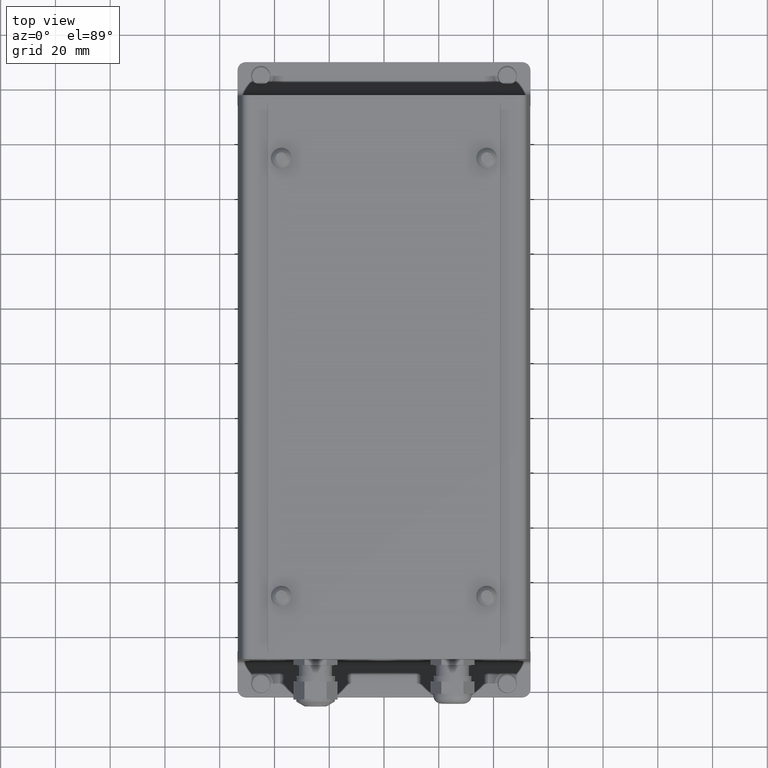
[diagram: clean part render]
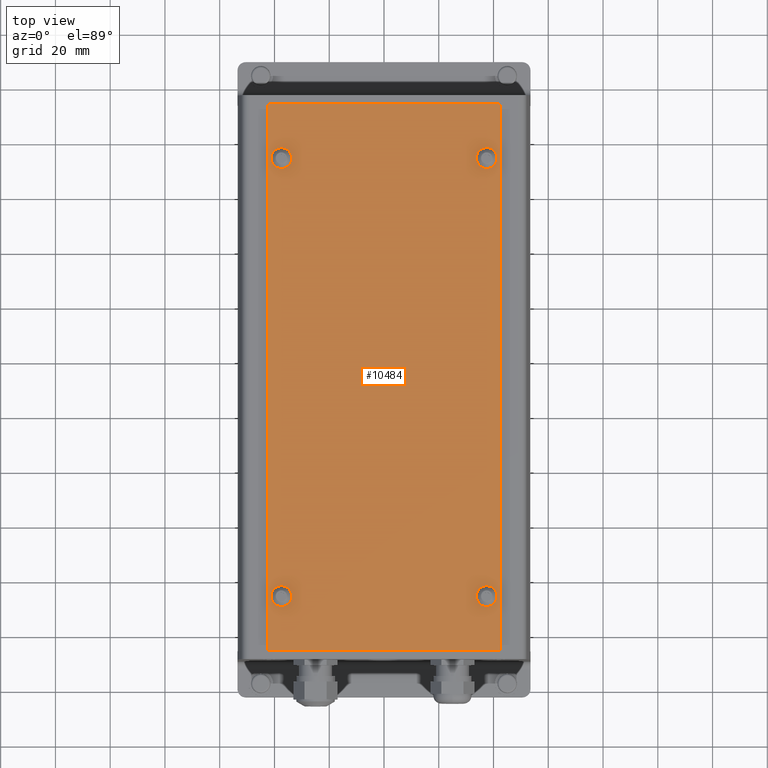
[diagram: same view with one face highlighted and labeled with its STEP entity id]
A machine part, top view. The second image highlights one B-rep face of the part: STEP entity #10484.
In plain terms, the highlighted planar face has unit normal (0, 0, 1).
Its self-contained STEP definition (entity closure, byte-faithful):
#10078=CARTESIAN_POINT('',(-37.599999999999987,-79.999999999999972,0.750000000000000));
#10079=VERTEX_POINT('',#10078);
#10088=CARTESIAN_POINT('',(-42.399999999999984,-79.999999999999972,0.750000000000000));
#10089=VERTEX_POINT('',#10088);
#10090=CARTESIAN_POINT('',(-39.999999999999986,-79.999999999999972,0.750000000000000));
#10091=DIRECTION('',(0.0,0.0,-1.0));
#10092=DIRECTION('',(1.0,0.0,0.0));
#10093=AXIS2_PLACEMENT_3D('',#10090,#10091,#10092);
#10094=CIRCLE('',#10093,2.400000000000000);
#10095=EDGE_CURVE('',#10089,#10079,#10094,.T.);
#10120=CARTESIAN_POINT('',(37.400000000000013,-79.999999999999972,0.750000000000000));
#10121=VERTEX_POINT('',#10120);
#10130=CARTESIAN_POINT('',(32.600000000000016,-79.999999999999972,0.750000000000000));
#10131=VERTEX_POINT('',#10130);
#10132=CARTESIAN_POINT('',(35.000000000000014,-79.999999999999972,0.750000000000000));
#10133=DIRECTION('',(0.0,0.0,-1.0));
#10134=DIRECTION('',(1.0,0.0,0.0));
#10135=AXIS2_PLACEMENT_3D('',#10132,#10133,#10134);
#10136=CIRCLE('',#10135,2.400000000000000);
#10137=EDGE_CURVE('',#10131,#10121,#10136,.T.);
#10162=CARTESIAN_POINT('',(-37.599999999999952,80.000000000000028,0.750000000000000));
#10163=VERTEX_POINT('',#10162);
#10172=CARTESIAN_POINT('',(-42.399999999999949,80.000000000000028,0.750000000000000));
#10173=VERTEX_POINT('',#10172);
#10174=CARTESIAN_POINT('',(-39.999999999999950,80.000000000000028,0.750000000000000));
#10175=DIRECTION('',(0.0,0.0,-1.0));
#10176=DIRECTION('',(1.0,0.0,0.0));
#10177=AXIS2_PLACEMENT_3D('',#10174,#10175,#10176);
#10178=CIRCLE('',#10177,2.400000000000000);
#10179=EDGE_CURVE('',#10173,#10163,#10178,.T.);
#10204=CARTESIAN_POINT('',(37.400000000000041,80.000000000000028,0.750000000000000));
#10205=VERTEX_POINT('',#10204);
#10214=CARTESIAN_POINT('',(32.600000000000044,80.000000000000028,0.750000000000000));
#10215=VERTEX_POINT('',#10214);
#10216=CARTESIAN_POINT('',(35.000000000000043,80.000000000000028,0.750000000000000));
#10217=DIRECTION('',(0.0,0.0,-1.0));
#10218=DIRECTION('',(1.0,0.0,0.0));
#10219=AXIS2_PLACEMENT_3D('',#10216,#10217,#10218);
#10220=CIRCLE('',#10219,2.400000000000000);
#10221=EDGE_CURVE('',#10215,#10205,#10220,.T.);
#10255=CARTESIAN_POINT('',(35.000000000000043,80.000000000000028,0.750000000000000));
#10256=DIRECTION('',(0.0,0.0,-1.0));
#10257=DIRECTION('',(1.0,0.0,0.0));
#10258=AXIS2_PLACEMENT_3D('',#10255,#10256,#10257);
#10259=CIRCLE('',#10258,2.400000000000000);
#10260=EDGE_CURVE('',#10205,#10215,#10259,.T.);
#10279=CARTESIAN_POINT('',(-39.999999999999950,80.000000000000028,0.750000000000000));
#10280=DIRECTION('',(0.0,0.0,-1.0));
#10281=DIRECTION('',(1.0,0.0,0.0));
#10282=AXIS2_PLACEMENT_3D('',#10279,#10280,#10281);
#10283=CIRCLE('',#10282,2.400000000000000);
#10284=EDGE_CURVE('',#10163,#10173,#10283,.T.);
#10303=CARTESIAN_POINT('',(35.000000000000014,-79.999999999999972,0.750000000000000));
#10304=DIRECTION('',(0.0,0.0,-1.0));
#10305=DIRECTION('',(1.0,0.0,0.0));
#10306=AXIS2_PLACEMENT_3D('',#10303,#10304,#10305);
#10307=CIRCLE('',#10306,2.400000000000000);
#10308=EDGE_CURVE('',#10121,#10131,#10307,.T.);
#10327=CARTESIAN_POINT('',(-39.999999999999986,-79.999999999999972,0.750000000000000));
#10328=DIRECTION('',(0.0,0.0,-1.0));
#10329=DIRECTION('',(1.0,0.0,0.0));
#10330=AXIS2_PLACEMENT_3D('',#10327,#10328,#10329);
#10331=CIRCLE('',#10330,2.400000000000000);
#10332=EDGE_CURVE('',#10079,#10089,#10331,.T.);
#10342=CARTESIAN_POINT('',(-43.999999999999986,-99.999999999999972,0.750000000000000));
#10343=VERTEX_POINT('',#10342);
#10344=CARTESIAN_POINT('',(-44.999999999999986,-98.999999999999972,0.750000000000000));
#10345=VERTEX_POINT('',#10344);
#10346=CARTESIAN_POINT('',(-43.999999999999986,-98.999999999999972,0.750000000000000));
#10347=DIRECTION('',(0.0,0.0,-1.000000000000000));
#10348=DIRECTION('',(-0.707106781186548,-0.707106781186548,0.0));
#10349=AXIS2_PLACEMENT_3D('',#10346,#10347,#10348);
#10350=CIRCLE('',#10349,1.000000000000000);
#10351=EDGE_CURVE('',#10343,#10345,#10350,.T.);
#10385=CARTESIAN_POINT('',(-44.999999999999986,99.000000000000028,0.750000000000000));
#10386=VERTEX_POINT('',#10385);
#10387=CARTESIAN_POINT('',(-44.999999999999986,-98.999999999999972,0.750000000000000));
#10388=DIRECTION('',(0.0,1.0,0.0));
#10389=VECTOR('',#10388,198.0);
#10390=LINE('',#10387,#10389);
#10391=EDGE_CURVE('',#10345,#10386,#10390,.T.);
#10410=CARTESIAN_POINT('',(-2.499999999999993,2.309264E-014,0.750000000000000));
#10411=DIRECTION('',(0.0,0.0,1.0));
#10412=DIRECTION('',(1.0,0.0,0.0));
#10413=AXIS2_PLACEMENT_3D('',#10410,#10411,#10412);
#10414=PLANE('',#10413);
#10415=ORIENTED_EDGE('',*,*,#10351,.F.);
#10416=CARTESIAN_POINT('',(39.000000000000014,-99.999999999999972,0.750000000000000));
#10417=VERTEX_POINT('',#10416);
#10418=CARTESIAN_POINT('',(39.000000000000014,-99.999999999999972,0.750000000000000));
#10419=DIRECTION('',(-1.0,0.0,0.0));
#10420=VECTOR('',#10419,83.0);
#10421=LINE('',#10418,#10420);
#10422=EDGE_CURVE('',#10417,#10343,#10421,.T.);
#10423=ORIENTED_EDGE('',*,*,#10422,.F.);
#10424=CARTESIAN_POINT('',(40.000000000000014,-98.999999999999972,0.750000000000000));
#10425=VERTEX_POINT('',#10424);
#10426=CARTESIAN_POINT('',(39.000000000000014,-98.999999999999972,0.750000000000000));
#10427=DIRECTION('',(0.0,0.0,-1.000000000000000));
#10428=DIRECTION('',(0.707106781186548,-0.707106781186548,0.0));
#10429=AXIS2_PLACEMENT_3D('',#10426,#10427,#10428);
#10430=CIRCLE('',#10429,1.000000000000000);
#10431=EDGE_CURVE('',#10425,#10417,#10430,.T.);
#10432=ORIENTED_EDGE('',*,*,#10431,.F.);
#10433=CARTESIAN_POINT('',(40.000000000000014,99.000000000000028,0.750000000000000));
#10434=VERTEX_POINT('',#10433);
#10435=CARTESIAN_POINT('',(40.000000000000014,99.000000000000028,0.750000000000000));
#10436=DIRECTION('',(0.0,-1.0,0.0));
#10437=VECTOR('',#10436,198.0);
#10438=LINE('',#10435,#10437);
#10439=EDGE_CURVE('',#10434,#10425,#10438,.T.);
#10440=ORIENTED_EDGE('',*,*,#10439,.F.);
#10441=CARTESIAN_POINT('',(39.000000000000014,100.000000000000040,0.750000000000000));
#10442=VERTEX_POINT('',#10441);
#10443=CARTESIAN_POINT('',(39.000000000000014,99.000000000000043,0.750000000000000));
#10444=DIRECTION('',(0.0,0.0,-1.000000000000000));
#10445=DIRECTION('',(0.707106781186548,0.707106781186548,0.0));
#10446=AXIS2_PLACEMENT_3D('',#10443,#10444,#10445);
#10447=CIRCLE('',#10446,1.000000000000000);
#10448=EDGE_CURVE('',#10442,#10434,#10447,.T.);
#10449=ORIENTED_EDGE('',*,*,#10448,.F.);
#10450=CARTESIAN_POINT('',(-43.999999999999986,100.000000000000030,0.750000000000000));
#10451=VERTEX_POINT('',#10450);
#10452=CARTESIAN_POINT('',(-43.999999999999986,100.000000000000030,0.750000000000000));
#10453=DIRECTION('',(1.0,0.0,0.0));
#10454=VECTOR('',#10453,83.0);
#10455=LINE('',#10452,#10454);
#10456=EDGE_CURVE('',#10451,#10442,#10455,.T.);
#10457=ORIENTED_EDGE('',*,*,#10456,.F.);
#10458=CARTESIAN_POINT('',(-43.999999999999986,99.000000000000028,0.750000000000000));
#10459=DIRECTION('',(0.0,0.0,-1.000000000000000));
#10460=DIRECTION('',(-0.707106781186548,0.707106781186548,0.0));
#10461=AXIS2_PLACEMENT_3D('',#10458,#10459,#10460);
#10462=CIRCLE('',#10461,1.000000000000000);
#10463=EDGE_CURVE('',#10386,#10451,#10462,.T.);
#10464=ORIENTED_EDGE('',*,*,#10463,.F.);
#10465=ORIENTED_EDGE('',*,*,#10391,.F.);
#10466=EDGE_LOOP('',(#10415,#10423,#10432,#10440,#10449,#10457,#10464,#10465));
#10467=FACE_OUTER_BOUND('',#10466,.T.);
#10468=ORIENTED_EDGE('',*,*,#10260,.T.);
#10469=ORIENTED_EDGE('',*,*,#10221,.T.);
#10470=EDGE_LOOP('',(#10468,#10469));
#10471=FACE_BOUND('',#10470,.T.);
#10472=ORIENTED_EDGE('',*,*,#10284,.T.);
#10473=ORIENTED_EDGE('',*,*,#10179,.T.);
#10474=EDGE_LOOP('',(#10472,#10473));
#10475=FACE_BOUND('',#10474,.T.);
#10476=ORIENTED_EDGE('',*,*,#10308,.T.);
#10477=ORIENTED_EDGE('',*,*,#10137,.T.);
#10478=EDGE_LOOP('',(#10476,#10477));
#10479=FACE_BOUND('',#10478,.T.);
#10480=ORIENTED_EDGE('',*,*,#10332,.T.);
#10481=ORIENTED_EDGE('',*,*,#10095,.T.);
#10482=EDGE_LOOP('',(#10480,#10481));
#10483=FACE_BOUND('',#10482,.T.);
#10484=ADVANCED_FACE('',(#10467,#10471,#10475,#10479,#10483),#10414,.T.);